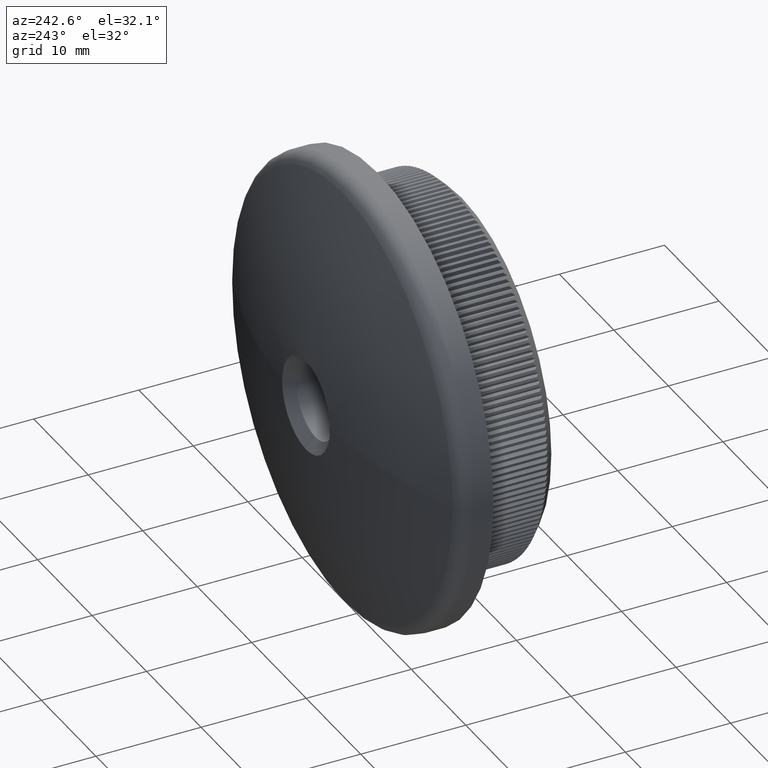
[diagram: clean part render]
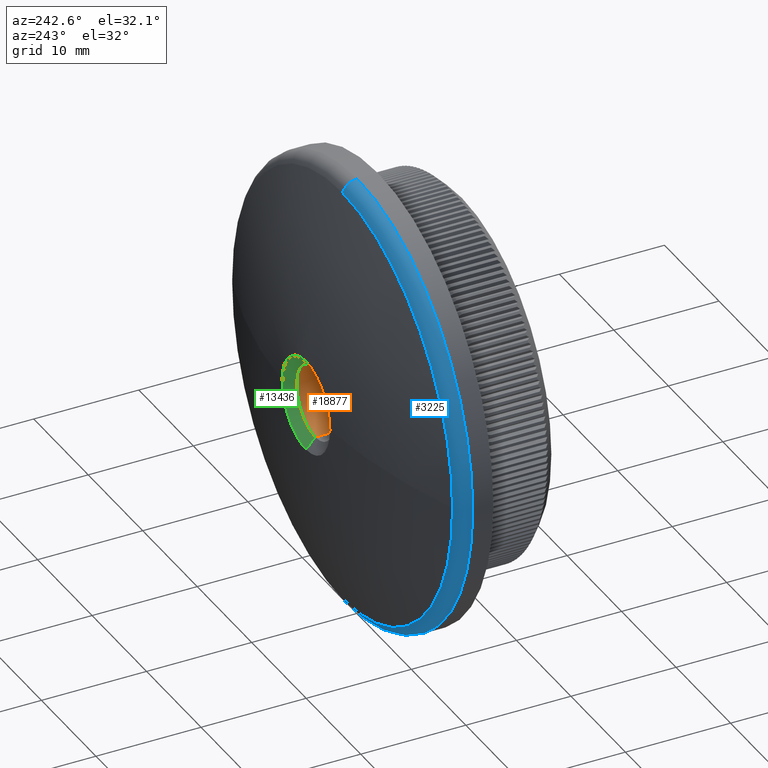
[diagram: same view with three faces highlighted in distinct colors, each labeled with its STEP entity id]
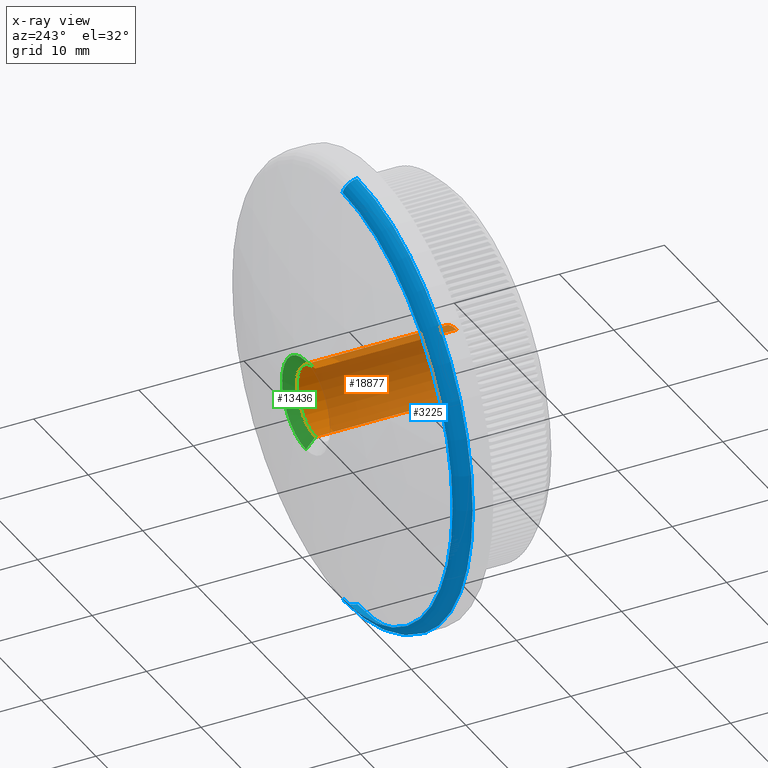
[diagram: x-ray of the same camera — body ghosted, the three highlighted faces saturated]
A machine part, auxiliary view with three faces highlighted in distinct colors.
The next image is the same camera in x-ray (body ghosted, the three faces saturated) — at least one of them is partly hidden behind the body in this view.
Their STEP definitions:

[orange] entity #18877 — the highlighted cylindrical surface (partial cylindrical patch) has radius 3.4 mm, axis along (-0, -1, -0).
#731 = VERTEX_POINT ( 'NONE', #13698 ) ;
#972 = CYLINDRICAL_SURFACE ( 'NONE', #16054, 3.399999999999995500 ) ;
#1278 = DIRECTION ( 'NONE',  ( 0.0000000000000000000, -1.000000000000000000, 0.0000000000000000000 ) ) ;
#2017 = LINE ( 'NONE', #24861, #13163 ) ;
#3011 = VERTEX_POINT ( 'NONE', #15013 ) ;
#3073 = AXIS2_PLACEMENT_3D ( 'NONE', #4947, #26445, #23973 ) ;
#3076 = VERTEX_POINT ( 'NONE', #8459 ) ;
#3114 = CARTESIAN_POINT ( 'NONE',  ( 0.0000000000000000000, 0.0000000000000000000, -3.399999999999995500 ) ) ;
#4947 = CARTESIAN_POINT ( 'NONE',  ( 0.0000000000000000000, 13.95425291678296300, 0.0000000000000000000 ) ) ;
#6458 = ORIENTED_EDGE ( 'NONE', *, *, #11103, .T. ) ;
#6517 = DIRECTION ( 'NONE',  ( -0.0000000000000000000, -1.000000000000000000, -0.0000000000000000000 ) ) ;
#6881 = CIRCLE ( 'NONE', #27832, 3.399999999999995500 ) ;
#7567 = VERTEX_POINT ( 'NONE', #19076 ) ;
#8262 = CARTESIAN_POINT ( 'NONE',  ( 0.0000000000000000000, 0.4999999999999891800, 0.0000000000000000000 ) ) ;
#8276 = EDGE_CURVE ( 'NONE', #3011, #731, #6881, .T. ) ;
#8459 = CARTESIAN_POINT ( 'NONE',  ( 4.163799117100995600E-016, 13.95425291678296300, 3.399999999999995500 ) ) ;
#11008 = DIRECTION ( 'NONE',  ( 0.0000000000000000000, 0.0000000000000000000, -1.000000000000000000 ) ) ;
#11103 = EDGE_CURVE ( 'NONE', #7567, #3011, #25767, .T. ) ;
#12539 = CIRCLE ( 'NONE', #3073, 3.399999999999995500 ) ;
#13163 = VECTOR ( 'NONE', #13328, 1000.000000000000000 ) ;
#13328 = DIRECTION ( 'NONE',  ( -0.0000000000000000000, -1.000000000000000000, -0.0000000000000000000 ) ) ;
#13698 = CARTESIAN_POINT ( 'NONE',  ( 4.163799117100995600E-016, 0.4999999999999891800, 3.399999999999995500 ) ) ;
#13806 = ORIENTED_EDGE ( 'NONE', *, *, #30118, .F. ) ;
#13882 = EDGE_LOOP ( 'NONE', ( #13806, #17379, #6458, #20643 ) ) ;
#15013 = CARTESIAN_POINT ( 'NONE',  ( 0.0000000000000000000, 0.4999999999999891800, -3.399999999999995500 ) ) ;
#16054 = AXIS2_PLACEMENT_3D ( 'NONE', #29956, #6517, #11008 ) ;
#17379 = ORIENTED_EDGE ( 'NONE', *, *, #17585, .T. ) ;
#17585 = EDGE_CURVE ( 'NONE', #3076, #7567, #12539, .T. ) ;
#18877 = ADVANCED_FACE ( 'NONE', ( #26624 ), #972, .F. ) ;
#19059 = VECTOR ( 'NONE', #26906, 1000.000000000000000 ) ;
#19076 = CARTESIAN_POINT ( 'NONE',  ( 0.0000000000000000000, 13.95425291678296300, -3.399999999999995500 ) ) ;
#20643 = ORIENTED_EDGE ( 'NONE', *, *, #8276, .T. ) ;
#23973 = DIRECTION ( 'NONE',  ( 0.0000000000000000000, 0.0000000000000000000, 1.000000000000000000 ) ) ;
#24861 = CARTESIAN_POINT ( 'NONE',  ( 4.163799117100995600E-016, 0.0000000000000000000, 3.399999999999995500 ) ) ;
#24871 = DIRECTION ( 'NONE',  ( 0.0000000000000000000, 0.0000000000000000000, -1.000000000000000000 ) ) ;
#25767 = LINE ( 'NONE', #3114, #19059 ) ;
#26445 = DIRECTION ( 'NONE',  ( 0.0000000000000000000, 1.000000000000000000, 0.0000000000000000000 ) ) ;
#26624 = FACE_OUTER_BOUND ( 'NONE', #13882, .T. ) ;
#26906 = DIRECTION ( 'NONE',  ( -0.0000000000000000000, -1.000000000000000000, -0.0000000000000000000 ) ) ;
#27832 = AXIS2_PLACEMENT_3D ( 'NONE', #8262, #1278, #24871 ) ;
#29956 = CARTESIAN_POINT ( 'NONE',  ( 0.0000000000000000000, 0.0000000000000000000, 0.0000000000000000000 ) ) ;
#30118 = EDGE_CURVE ( 'NONE', #3076, #731, #2017, .T. ) ;

[blue] entity #3225 — the highlighted toroidal blend (fillet) surface has major radius 19.7 mm and minor (blend) radius 1.5 mm.
#137 = VERTEX_POINT ( 'NONE', #12093 ) ;
#1344 = EDGE_CURVE ( 'NONE', #26453, #24558, #16442, .T. ) ;
#2046 = DIRECTION ( 'NONE',  ( 0.0000000000000000000, 0.0000000000000000000, -1.000000000000000000 ) ) ;
#2355 = CARTESIAN_POINT ( 'NONE',  ( 0.0000000000000000000, 9.966330070852492900, 0.0000000000000000000 ) ) ;
#2834 = CARTESIAN_POINT ( 'NONE',  ( 2.412554194320286400E-015, 9.966330070852492900, 19.70000000000000300 ) ) ;
#2994 = ORIENTED_EDGE ( 'NONE', *, *, #1344, .F. ) ;
#3225 = ADVANCED_FACE ( 'NONE', ( #4467 ), #30470, .T. ) ;
#4467 = FACE_OUTER_BOUND ( 'NONE', #9729, .T. ) ;
#4847 = AXIS2_PLACEMENT_3D ( 'NONE', #2355, #30680, #2046 ) ;
#5103 = CARTESIAN_POINT ( 'NONE',  ( -20.22134791813689200, 11.37281375303809700, 2.476400900239134100E-015 ) ) ;
#6132 = ORIENTED_EDGE ( 'NONE', *, *, #8319, .T. ) ;
#8319 = EDGE_CURVE ( 'NONE', #137, #30349, #30624, .T. ) ;
#8741 = CARTESIAN_POINT ( 'NONE',  ( 0.0000000000000000000, 9.966330070852492900, -21.20000000000000300 ) ) ;
#9168 = AXIS2_PLACEMENT_3D ( 'NONE', #10868, #10673, #17693 ) ;
#9729 = EDGE_LOOP ( 'NONE', ( #2994, #30599, #26061, #6132, #18942 ) ) ;
#9740 = CIRCLE ( 'NONE', #27445, 20.22134791813691000 ) ;
#10043 = DIRECTION ( 'NONE',  ( 0.0000000000000000000, 0.0000000000000000000, -1.000000000000000000 ) ) ;
#10226 = CARTESIAN_POINT ( 'NONE',  ( 2.596251214192389200E-015, 9.966330070852492900, 21.20000000000000300 ) ) ;
#10504 = DIRECTION ( 'NONE',  ( 0.0000000000000000000, 1.000000000000000000, 0.0000000000000000000 ) ) ;
#10673 = DIRECTION ( 'NONE',  ( -1.000000000000000000, 0.0000000000000000000, 0.0000000000000000000 ) ) ;
#10868 = CARTESIAN_POINT ( 'NONE',  ( 0.0000000000000000000, 9.966330070852492900, -19.70000000000000300 ) ) ;
#12093 = CARTESIAN_POINT ( 'NONE',  ( 0.0000000000000000000, 11.37281375303810000, -20.22134791813691000 ) ) ;
#12174 = DIRECTION ( 'NONE',  ( -0.0000000000000000000, -1.000000000000000000, -0.0000000000000000000 ) ) ;
#12864 = DIRECTION ( 'NONE',  ( 0.0000000000000000000, 0.0000000000000000000, -1.000000000000000000 ) ) ;
#14035 = CIRCLE ( 'NONE', #4847, 21.20000000000000300 ) ;
#14390 = DIRECTION ( 'NONE',  ( -1.224646799147352000E-016, 0.0000000000000000000, -1.000000000000000000 ) ) ;
#14569 = DIRECTION ( 'NONE',  ( 0.0000000000000000000, 0.0000000000000000000, -1.000000000000000000 ) ) ;
#16442 = CIRCLE ( 'NONE', #18542, 1.500000000000001300 ) ;
#16461 = EDGE_CURVE ( 'NONE', #24558, #30349, #14035, .T. ) ;
#17072 = CARTESIAN_POINT ( 'NONE',  ( 0.0000000000000000000, 11.37281375303810000, 0.0000000000000000000 ) ) ;
#17280 = AXIS2_PLACEMENT_3D ( 'NONE', #17072, #26930, #10043 ) ;
#17693 = DIRECTION ( 'NONE',  ( 0.0000000000000000000, 0.0000000000000000000, 1.000000000000000000 ) ) ;
#18542 = AXIS2_PLACEMENT_3D ( 'NONE', #2834, #26520, #14390 ) ;
#18942 = ORIENTED_EDGE ( 'NONE', *, *, #16461, .F. ) ;
#21591 = EDGE_CURVE ( 'NONE', #137, #22165, #30512, .T. ) ;
#22165 = VERTEX_POINT ( 'NONE', #5103 ) ;
#23560 = EDGE_CURVE ( 'NONE', #22165, #26453, #9740, .T. ) ;
#24019 = CARTESIAN_POINT ( 'NONE',  ( 0.0000000000000000000, 9.966330070852492900, 0.0000000000000000000 ) ) ;
#24558 = VERTEX_POINT ( 'NONE', #10226 ) ;
#25563 = AXIS2_PLACEMENT_3D ( 'NONE', #24019, #12174, #14569 ) ;
#26061 = ORIENTED_EDGE ( 'NONE', *, *, #21591, .F. ) ;
#26453 = VERTEX_POINT ( 'NONE', #29920 ) ;
#26520 = DIRECTION ( 'NONE',  ( 1.000000000000000000, 0.0000000000000000000, -1.224646799147353500E-016 ) ) ;
#26930 = DIRECTION ( 'NONE',  ( 0.0000000000000000000, 1.000000000000000000, 0.0000000000000000000 ) ) ;
#27445 = AXIS2_PLACEMENT_3D ( 'NONE', #29245, #10504, #12864 ) ;
#29245 = CARTESIAN_POINT ( 'NONE',  ( 0.0000000000000000000, 11.37281375303810000, 0.0000000000000000000 ) ) ;
#29920 = CARTESIAN_POINT ( 'NONE',  ( 2.536326057215763400E-015, 11.37281375303810000, 20.22134791813691000 ) ) ;
#30349 = VERTEX_POINT ( 'NONE', #8741 ) ;
#30470 = TOROIDAL_SURFACE ( 'NONE', #25563, 19.70000000000000300, 1.500000000000000000 ) ;
#30512 = CIRCLE ( 'NONE', #17280, 20.22134791813691000 ) ;
#30599 = ORIENTED_EDGE ( 'NONE', *, *, #23560, .F. ) ;
#30624 = CIRCLE ( 'NONE', #9168, 1.500000000000001300 ) ;
#30680 = DIRECTION ( 'NONE',  ( -0.0000000000000000000, -1.000000000000000000, -0.0000000000000000000 ) ) ;

[green] entity #13436 — the highlighted conical surface has half-angle 48.35 deg.
#628 = VECTOR ( 'NONE', #4533, 1000.000000000000100 ) ;
#1272 = DIRECTION ( 'NONE',  ( -0.0000000000000000000, -1.000000000000000000, -0.0000000000000000000 ) ) ;
#1279 = DIRECTION ( 'NONE',  ( 0.0000000000000000000, 0.0000000000000000000, 1.000000000000000000 ) ) ;
#1401 = AXIS2_PLACEMENT_3D ( 'NONE', #8155, #1272, #22377 ) ;
#3073 = AXIS2_PLACEMENT_3D ( 'NONE', #4947, #26445, #23973 ) ;
#3076 = VERTEX_POINT ( 'NONE', #8459 ) ;
#4533 = DIRECTION ( 'NONE',  ( 0.0000000000000000000, 0.6645754650830519900, 0.7472211528119671000 ) ) ;
#4947 = CARTESIAN_POINT ( 'NONE',  ( 0.0000000000000000000, 13.95425291678296300, 0.0000000000000000000 ) ) ;
#5447 = EDGE_CURVE ( 'NONE', #7567, #28134, #24496, .T. ) ;
#5616 = ORIENTED_EDGE ( 'NONE', *, *, #5447, .F. ) ;
#6616 = CARTESIAN_POINT ( 'NONE',  ( 0.0000000000000000000, 14.83418710009236300, 0.0000000000000000000 ) ) ;
#6640 = CARTESIAN_POINT ( 'NONE',  ( 0.0000000000000000000, 13.95425291678296300, 3.399999999999995500 ) ) ;
#7072 = ORIENTED_EDGE ( 'NONE', *, *, #10528, .F. ) ;
#7567 = VERTEX_POINT ( 'NONE', #19076 ) ;
#8155 = CARTESIAN_POINT ( 'NONE',  ( 0.0000000000000000000, 14.83418710009236300, 0.0000000000000000000 ) ) ;
#8459 = CARTESIAN_POINT ( 'NONE',  ( 4.163799117100995600E-016, 13.95425291678296300, 3.399999999999995500 ) ) ;
#8515 = CARTESIAN_POINT ( 'NONE',  ( 0.0000000000000000000, 14.83418710009236300, 4.389361584043635700 ) ) ;
#8606 = CARTESIAN_POINT ( 'NONE',  ( 4.389361584043620600, 14.83418710009236300, 0.0000000000000000000 ) ) ;
#9181 = DIRECTION ( 'NONE',  ( 9.150819930463708100E-017, 0.6645754650830519900, -0.7472211528119671000 ) ) ;
#9583 = AXIS2_PLACEMENT_3D ( 'NONE', #6616, #11194, #28205 ) ;
#10492 = ORIENTED_EDGE ( 'NONE', *, *, #17585, .F. ) ;
#10528 = EDGE_CURVE ( 'NONE', #29708, #12942, #20200, .T. ) ;
#10709 = EDGE_CURVE ( 'NONE', #28134, #29708, #28355, .T. ) ;
#11194 = DIRECTION ( 'NONE',  ( -0.0000000000000000000, -1.000000000000000000, -0.0000000000000000000 ) ) ;
#12539 = CIRCLE ( 'NONE', #3073, 3.399999999999995500 ) ;
#12942 = VERTEX_POINT ( 'NONE', #8515 ) ;
#12985 = VECTOR ( 'NONE', #9181, 1000.000000000000100 ) ;
#13436 = ADVANCED_FACE ( 'NONE', ( #29338 ), #18978, .F. ) ;
#14457 = ORIENTED_EDGE ( 'NONE', *, *, #10709, .F. ) ;
#17585 = EDGE_CURVE ( 'NONE', #3076, #7567, #12539, .T. ) ;
#18970 = AXIS2_PLACEMENT_3D ( 'NONE', #22584, #27155, #1279 ) ;
#18978 = CONICAL_SURFACE ( 'NONE', #18970, 3.399999999999995500, 0.8438708040748624800 ) ;
#19076 = CARTESIAN_POINT ( 'NONE',  ( 0.0000000000000000000, 13.95425291678296300, -3.399999999999995500 ) ) ;
#19952 = LINE ( 'NONE', #6640, #628 ) ;
#20200 = CIRCLE ( 'NONE', #9583, 4.389361584043620600 ) ;
#20554 = ORIENTED_EDGE ( 'NONE', *, *, #28602, .T. ) ;
#22377 = DIRECTION ( 'NONE',  ( 0.0000000000000000000, 0.0000000000000000000, -1.000000000000000000 ) ) ;
#22584 = CARTESIAN_POINT ( 'NONE',  ( 0.0000000000000000000, 13.95425291678296300, 0.0000000000000000000 ) ) ;
#23973 = DIRECTION ( 'NONE',  ( 0.0000000000000000000, 0.0000000000000000000, 1.000000000000000000 ) ) ;
#24496 = LINE ( 'NONE', #28051, #12985 ) ;
#24674 = EDGE_LOOP ( 'NONE', ( #5616, #10492, #20554, #7072, #14457 ) ) ;
#26445 = DIRECTION ( 'NONE',  ( 0.0000000000000000000, 1.000000000000000000, 0.0000000000000000000 ) ) ;
#27155 = DIRECTION ( 'NONE',  ( 0.0000000000000000000, 1.000000000000000000, 0.0000000000000000000 ) ) ;
#28051 = CARTESIAN_POINT ( 'NONE',  ( 4.163799117100995600E-016, 13.95425291678296300, -3.399999999999995500 ) ) ;
#28134 = VERTEX_POINT ( 'NONE', #28620 ) ;
#28205 = DIRECTION ( 'NONE',  ( 0.0000000000000000000, 0.0000000000000000000, -1.000000000000000000 ) ) ;
#28355 = CIRCLE ( 'NONE', #1401, 4.389361584043620600 ) ;
#28602 = EDGE_CURVE ( 'NONE', #3076, #12942, #19952, .T. ) ;
#28620 = CARTESIAN_POINT ( 'NONE',  ( 5.375417614199396000E-016, 14.83418710009236300, -4.389361584043635700 ) ) ;
#29338 = FACE_OUTER_BOUND ( 'NONE', #24674, .T. ) ;
#29708 = VERTEX_POINT ( 'NONE', #8606 ) ;